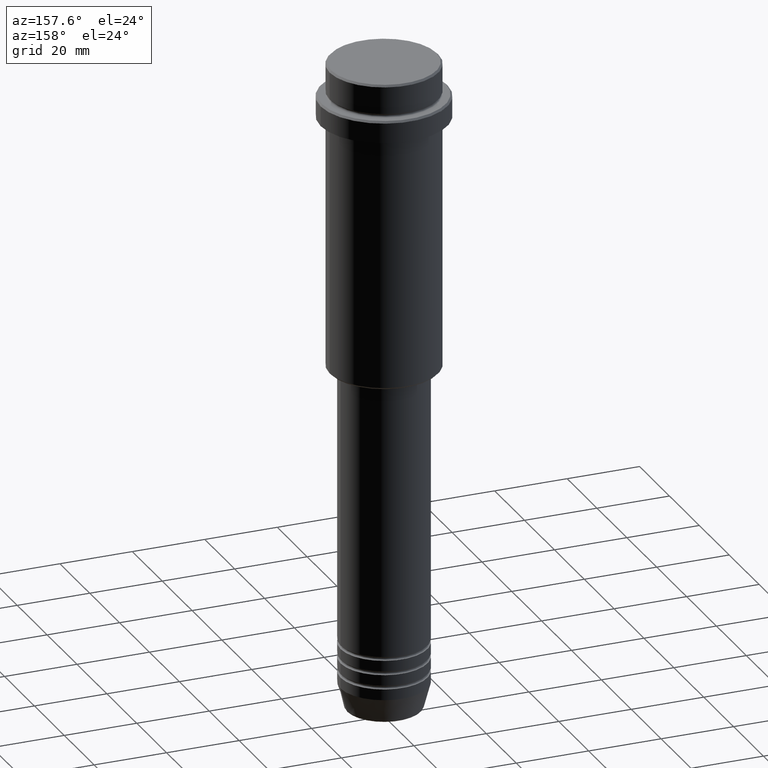
[diagram: clean part render]
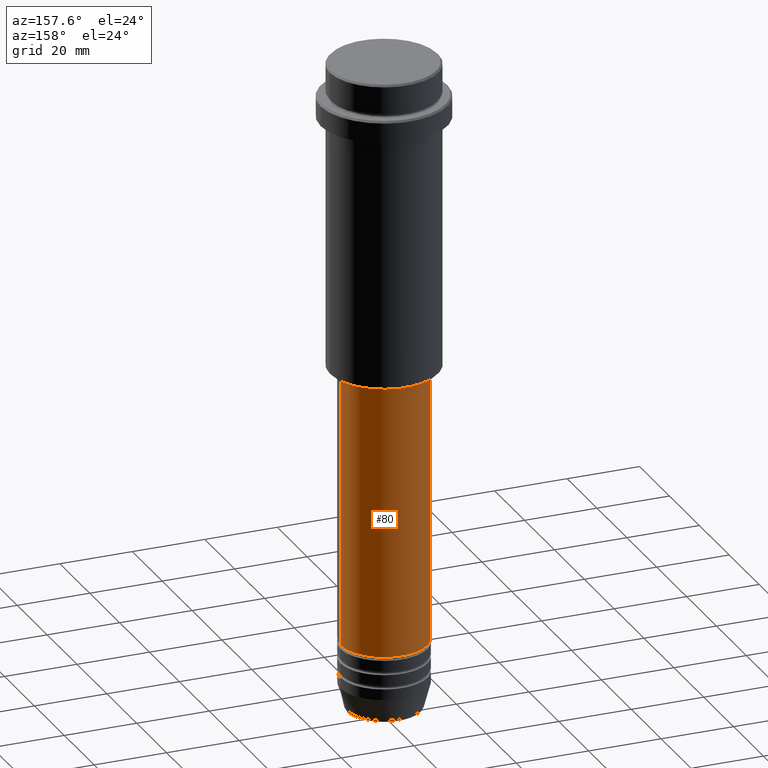
[diagram: same view with one face highlighted and labeled with its STEP entity id]
A machine part, auxiliary view. The second image highlights one B-rep face of the part: STEP entity #80.
In plain terms, the highlighted cylindrical surface (partial cylindrical patch) has radius 12 mm, axis along (-0, -0, 1).
Its self-contained STEP definition (entity closure, byte-faithful):
#6 = VECTOR ( 'NONE', #458, 1000.000000000000000 ) ;
#44 = DIRECTION ( 'NONE',  ( -0.000000000000000000, -0.000000000000000000, 1.000000000000000000 ) ) ;
#49 = AXIS2_PLACEMENT_3D ( 'NONE', #866, #99, #739 ) ;
#80 = ADVANCED_FACE ( 'NONE', ( #1181 ), #208, .T. ) ;
#99 = DIRECTION ( 'NONE',  ( -0.000000000000000000, -0.000000000000000000, 1.000000000000000000 ) ) ;
#111 = VECTOR ( 'NONE', #320, 1000.000000000000000 ) ;
#151 = LINE ( 'NONE', #585, #6 ) ;
#203 = ORIENTED_EDGE ( 'NONE', *, *, #377, .F. ) ;
#208 = CYLINDRICAL_SURFACE ( 'NONE', #326, 12.00000000000000000 ) ;
#232 = VERTEX_POINT ( 'NONE', #663 ) ;
#292 = VERTEX_POINT ( 'NONE', #716 ) ;
#320 = DIRECTION ( 'NONE',  ( -0.000000000000000000, -0.000000000000000000, 1.000000000000000000 ) ) ;
#326 = AXIS2_PLACEMENT_3D ( 'NONE', #1313, #950, #1277 ) ;
#377 = EDGE_CURVE ( 'NONE', #1144, #292, #151, .T. ) ;
#395 = EDGE_CURVE ( 'NONE', #1144, #232, #1304, .T. ) ;
#458 = DIRECTION ( 'NONE',  ( -0.000000000000000000, -0.000000000000000000, 1.000000000000000000 ) ) ;
#585 = CARTESIAN_POINT ( 'NONE',  ( 12.00000000000000000, 0.000000000000000000, 0.000000000000000000 ) ) ;
#663 = CARTESIAN_POINT ( 'NONE',  ( -12.00000000000000000, 1.469576158976823947E-15, -160.9999999999998579 ) ) ;
#666 = CIRCLE ( 'NONE', #49, 11.99999999999999822 ) ;
#716 = CARTESIAN_POINT ( 'NONE',  ( 11.99999999999999822, 0.000000000000000000, -86.00000000000000000 ) ) ;
#735 = ORIENTED_EDGE ( 'NONE', *, *, #955, .T. ) ;
#739 = DIRECTION ( 'NONE',  ( 1.000000000000000000, 0.000000000000000000, 0.000000000000000000 ) ) ;
#776 = VERTEX_POINT ( 'NONE', #1314 ) ;
#866 = CARTESIAN_POINT ( 'NONE',  ( 0.000000000000000000, 0.000000000000000000, -86.00000000000000000 ) ) ;
#894 = CARTESIAN_POINT ( 'NONE',  ( 0.000000000000000000, 0.000000000000000000, -160.9999999999998579 ) ) ;
#913 = DIRECTION ( 'NONE',  ( 1.000000000000000000, 0.000000000000000000, 0.000000000000000000 ) ) ;
#943 = ORIENTED_EDGE ( 'NONE', *, *, #395, .T. ) ;
#950 = DIRECTION ( 'NONE',  ( -0.000000000000000000, -0.000000000000000000, 1.000000000000000000 ) ) ;
#953 = CARTESIAN_POINT ( 'NONE',  ( -12.00000000000000000, 1.469576158976823947E-15, 0.000000000000000000 ) ) ;
#955 = EDGE_CURVE ( 'NONE', #232, #776, #1397, .T. ) ;
#978 = EDGE_CURVE ( 'NONE', #292, #776, #666, .T. ) ;
#1007 = ORIENTED_EDGE ( 'NONE', *, *, #978, .F. ) ;
#1144 = VERTEX_POINT ( 'NONE', #1417 ) ;
#1181 = FACE_OUTER_BOUND ( 'NONE', #1386, .T. ) ;
#1277 = DIRECTION ( 'NONE',  ( 1.000000000000000000, 0.000000000000000000, 0.000000000000000000 ) ) ;
#1304 = CIRCLE ( 'NONE', #1354, 12.00000000000000000 ) ;
#1313 = CARTESIAN_POINT ( 'NONE',  ( 0.000000000000000000, 0.000000000000000000, 0.000000000000000000 ) ) ;
#1314 = CARTESIAN_POINT ( 'NONE',  ( -11.99999999999999822, 1.469576158976823750E-15, -86.00000000000000000 ) ) ;
#1354 = AXIS2_PLACEMENT_3D ( 'NONE', #894, #44, #913 ) ;
#1386 = EDGE_LOOP ( 'NONE', ( #943, #735, #1007, #203 ) ) ;
#1397 = LINE ( 'NONE', #953, #111 ) ;
#1417 = CARTESIAN_POINT ( 'NONE',  ( 12.00000000000000000, 0.000000000000000000, -160.9999999999998579 ) ) ;